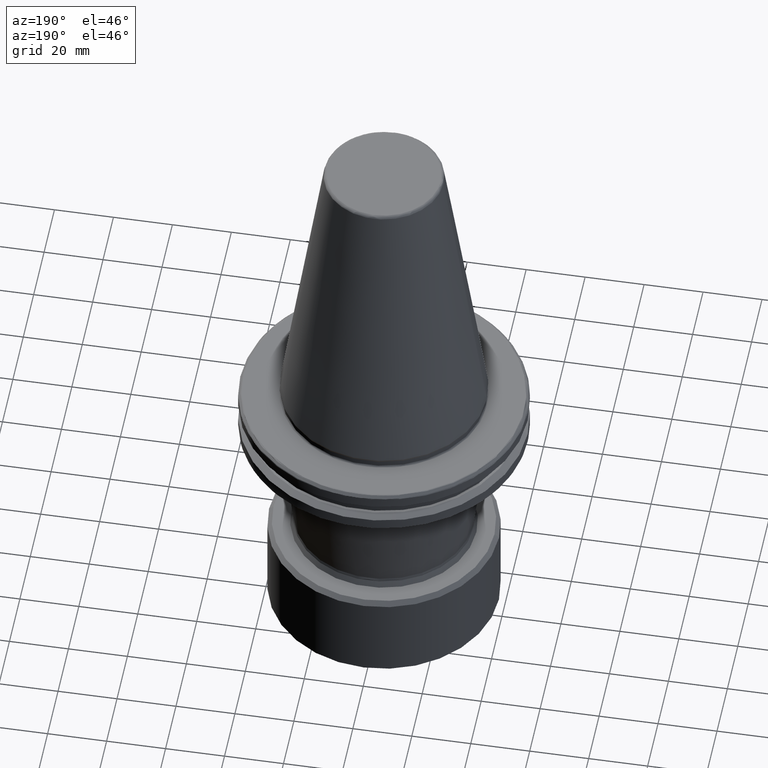
[diagram: clean part render]
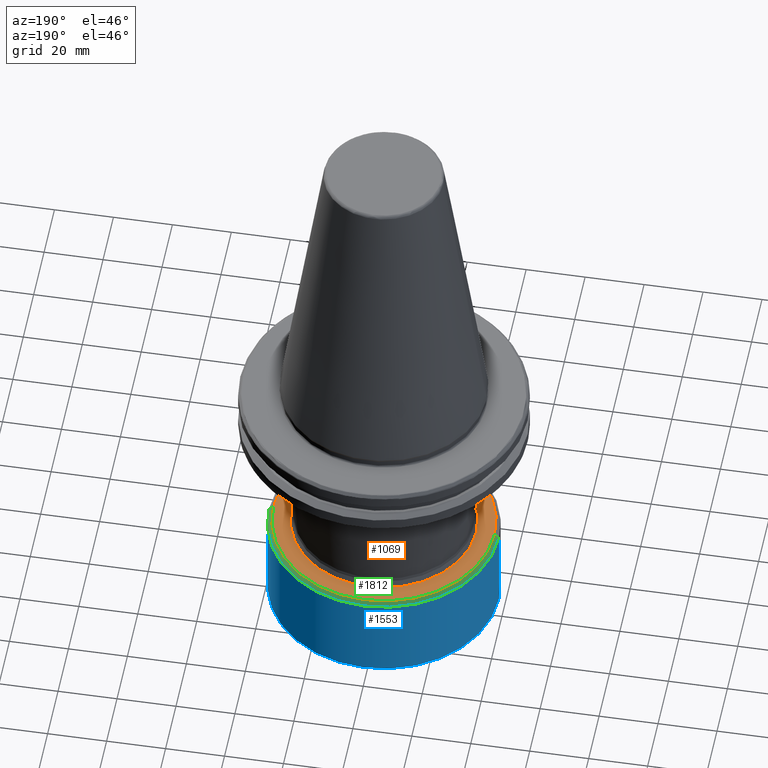
[diagram: same view with three faces highlighted in distinct colors, each labeled with its STEP entity id]
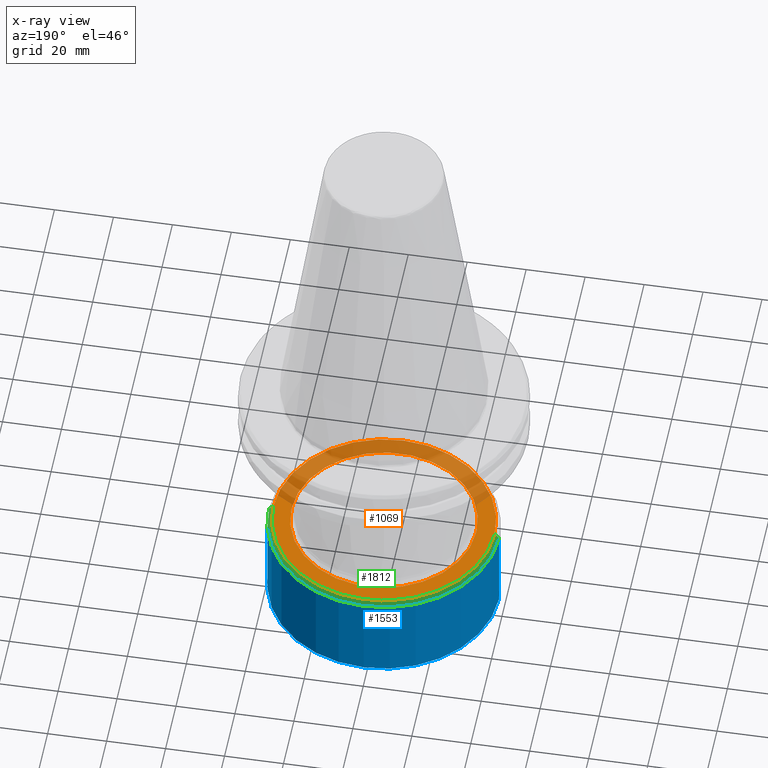
[diagram: x-ray of the same camera — body ghosted, the three highlighted faces saturated]
A machine part, auxiliary view with three faces highlighted in distinct colors.
The next image is the same camera in x-ray (body ghosted, the three faces saturated) — at least one of them is partly hidden behind the body in this view.
Their STEP definitions:

[orange] entity #1069 — the highlighted planar face has unit normal (0, 0, -1).
#90 = DIRECTION ( 'NONE',  ( -1.000000000000000000, 0.0000000000000000000, 0.0000000000000000000 ) ) ;
#160 = VERTEX_POINT ( 'NONE', #2072 ) ;
#170 = VERTEX_POINT ( 'NONE', #1917 ) ;
#172 = EDGE_CURVE ( 'NONE', #160, #170, #716, .T. ) ;
#220 = DIRECTION ( 'NONE',  ( -1.000000000000000000, 0.0000000000000000000, 0.0000000000000000000 ) ) ;
#270 = EDGE_LOOP ( 'NONE', ( #817, #1467 ) ) ;
#550 = DIRECTION ( 'NONE',  ( 0.0000000000000000000, 0.0000000000000000000, -1.000000000000000000 ) ) ;
#716 = CIRCLE ( 'NONE', #1989, 37.50000000000000000 ) ;
#750 = PLANE ( 'NONE',  #2490 ) ;
#792 = CIRCLE ( 'NONE', #1306, 31.38086162042798900 ) ;
#817 = ORIENTED_EDGE ( 'NONE', *, *, #172, .F. ) ;
#913 = EDGE_CURVE ( 'NONE', #1863, #979, #2829, .T. ) ;
#979 = VERTEX_POINT ( 'NONE', #2238 ) ;
#1069 = ADVANCED_FACE ( 'NONE', ( #2264, #3064 ), #750, .F. ) ;
#1071 = EDGE_CURVE ( 'NONE', #170, #160, #2130, .T. ) ;
#1105 = DIRECTION ( 'NONE',  ( -1.000000000000000000, 0.0000000000000000000, 0.0000000000000000000 ) ) ;
#1306 = AXIS2_PLACEMENT_3D ( 'NONE', #1326, #1320, #1105 ) ;
#1320 = DIRECTION ( 'NONE',  ( -0.0000000000000000000, -0.0000000000000000000, 1.000000000000000000 ) ) ;
#1323 = CARTESIAN_POINT ( 'NONE',  ( 0.0000000000000000000, 0.0000000000000000000, -64.59999999999999400 ) ) ;
#1326 = CARTESIAN_POINT ( 'NONE',  ( 0.0000000000000000000, 0.0000000000000000000, -64.59999999999999400 ) ) ;
#1467 = ORIENTED_EDGE ( 'NONE', *, *, #1071, .F. ) ;
#1593 = DIRECTION ( 'NONE',  ( 0.0000000000000000000, 0.0000000000000000000, -1.000000000000000000 ) ) ;
#1727 = CARTESIAN_POINT ( 'NONE',  ( -31.38086162042798900, 0.0000000000000000000, -64.59999999999999400 ) ) ;
#1739 = DIRECTION ( 'NONE',  ( -0.0000000000000000000, -0.0000000000000000000, 1.000000000000000000 ) ) ;
#1828 = AXIS2_PLACEMENT_3D ( 'NONE', #3079, #1739, #220 ) ;
#1862 = DIRECTION ( 'NONE',  ( -1.000000000000000000, 0.0000000000000000000, 0.0000000000000000000 ) ) ;
#1863 = VERTEX_POINT ( 'NONE', #1727 ) ;
#1876 = DIRECTION ( 'NONE',  ( 0.0000000000000000000, 0.0000000000000000000, -1.000000000000000000 ) ) ;
#1880 = CARTESIAN_POINT ( 'NONE',  ( 0.0000000000000000000, 0.0000000000000000000, -64.59999999999999400 ) ) ;
#1917 = CARTESIAN_POINT ( 'NONE',  ( 37.50000000000000000, 4.684274006738626500E-015, -64.59999999999999400 ) ) ;
#1983 = EDGE_CURVE ( 'NONE', #979, #1863, #792, .T. ) ;
#1989 = AXIS2_PLACEMENT_3D ( 'NONE', #1880, #1876, #1862 ) ;
#2072 = CARTESIAN_POINT ( 'NONE',  ( -37.50000000000000000, 0.0000000000000000000, -64.59999999999999400 ) ) ;
#2130 = CIRCLE ( 'NONE', #2641, 37.50000000000000000 ) ;
#2238 = CARTESIAN_POINT ( 'NONE',  ( 31.38086162042798900, 3.843047173794316500E-015, -64.59999999999999400 ) ) ;
#2264 = FACE_BOUND ( 'NONE', #2405, .T. ) ;
#2304 = DIRECTION ( 'NONE',  ( -1.000000000000000000, 0.0000000000000000000, -0.0000000000000000000 ) ) ;
#2308 = ORIENTED_EDGE ( 'NONE', *, *, #1983, .F. ) ;
#2405 = EDGE_LOOP ( 'NONE', ( #2899, #2308 ) ) ;
#2490 = AXIS2_PLACEMENT_3D ( 'NONE', #1323, #550, #2304 ) ;
#2641 = AXIS2_PLACEMENT_3D ( 'NONE', #2950, #1593, #90 ) ;
#2829 = CIRCLE ( 'NONE', #1828, 31.38086162042798900 ) ;
#2899 = ORIENTED_EDGE ( 'NONE', *, *, #913, .F. ) ;
#2950 = CARTESIAN_POINT ( 'NONE',  ( 0.0000000000000000000, 0.0000000000000000000, -64.59999999999999400 ) ) ;
#3064 = FACE_OUTER_BOUND ( 'NONE', #270, .T. ) ;
#3079 = CARTESIAN_POINT ( 'NONE',  ( 0.0000000000000000000, 0.0000000000000000000, -64.59999999999999400 ) ) ;

[blue] entity #1553 — the highlighted cylindrical surface (partial cylindrical patch) has radius 39 mm, axis along (0, 0, 1).
#197 = VERTEX_POINT ( 'NONE', #1850 ) ;
#205 = CARTESIAN_POINT ( 'NONE',  ( -39.00000000000000000, 4.776122516674677900E-015, -95.66987298107787300 ) ) ;
#338 = CARTESIAN_POINT ( 'NONE',  ( 0.0000000000000000000, 0.0000000000000000000, -95.66987298107787300 ) ) ;
#348 = CARTESIAN_POINT ( 'NONE',  ( 0.0000000000000000000, 0.0000000000000000000, 181.9423428149682400 ) ) ;
#398 = AXIS2_PLACEMENT_3D ( 'NONE', #348, #594, #1874 ) ;
#521 = LINE ( 'NONE', #2679, #1484 ) ;
#581 = DIRECTION ( 'NONE',  ( 1.000000000000000000, 0.0000000000000000000, 0.0000000000000000000 ) ) ;
#594 = DIRECTION ( 'NONE',  ( 0.0000000000000000000, 0.0000000000000000000, 1.000000000000000000 ) ) ;
#904 = VERTEX_POINT ( 'NONE', #961 ) ;
#961 = CARTESIAN_POINT ( 'NONE',  ( 39.00000000000000000, 0.0000000000000000000, -95.66987298107787300 ) ) ;
#1032 = CARTESIAN_POINT ( 'NONE',  ( 39.00000000000000000, 0.0000000000000000000, -66.09999999999999400 ) ) ;
#1095 = EDGE_CURVE ( 'NONE', #904, #2152, #2080, .T. ) ;
#1242 = CIRCLE ( 'NONE', #2884, 39.00000000000000000 ) ;
#1258 = DIRECTION ( 'NONE',  ( 0.0000000000000000000, 0.0000000000000000000, 1.000000000000000000 ) ) ;
#1266 = ORIENTED_EDGE ( 'NONE', *, *, #1095, .T. ) ;
#1484 = VECTOR ( 'NONE', #1258, 1000.000000000000000 ) ;
#1553 = ADVANCED_FACE ( 'NONE', ( #2751 ), #2985, .T. ) ;
#1580 = DIRECTION ( 'NONE',  ( -0.0000000000000000000, -0.0000000000000000000, 1.000000000000000000 ) ) ;
#1633 = ORIENTED_EDGE ( 'NONE', *, *, #2952, .F. ) ;
#1840 = VECTOR ( 'NONE', #2894, 1000.000000000000000 ) ;
#1850 = CARTESIAN_POINT ( 'NONE',  ( -39.00000000000000000, 4.776122516674677900E-015, -66.09999999999999400 ) ) ;
#1871 = LINE ( 'NONE', #3085, #1840 ) ;
#1874 = DIRECTION ( 'NONE',  ( 1.000000000000000000, 0.0000000000000000000, 0.0000000000000000000 ) ) ;
#1897 = DIRECTION ( 'NONE',  ( -1.000000000000000000, 0.0000000000000000000, 0.0000000000000000000 ) ) ;
#1940 = EDGE_CURVE ( 'NONE', #2164, #197, #1242, .T. ) ;
#2080 = CIRCLE ( 'NONE', #2367, 39.00000000000000000 ) ;
#2103 = DIRECTION ( 'NONE',  ( 0.0000000000000000000, 0.0000000000000000000, 1.000000000000000000 ) ) ;
#2152 = VERTEX_POINT ( 'NONE', #205 ) ;
#2164 = VERTEX_POINT ( 'NONE', #1032 ) ;
#2367 = AXIS2_PLACEMENT_3D ( 'NONE', #338, #2103, #581 ) ;
#2369 = ORIENTED_EDGE ( 'NONE', *, *, #1940, .F. ) ;
#2374 = EDGE_LOOP ( 'NONE', ( #1266, #2410, #2369, #1633 ) ) ;
#2383 = CARTESIAN_POINT ( 'NONE',  ( 0.0000000000000000000, 0.0000000000000000000, -66.09999999999999400 ) ) ;
#2410 = ORIENTED_EDGE ( 'NONE', *, *, #2987, .T. ) ;
#2679 = CARTESIAN_POINT ( 'NONE',  ( 39.00000000000000000, 0.0000000000000000000, 181.9423428149682400 ) ) ;
#2751 = FACE_OUTER_BOUND ( 'NONE', #2374, .T. ) ;
#2884 = AXIS2_PLACEMENT_3D ( 'NONE', #2383, #1580, #1897 ) ;
#2894 = DIRECTION ( 'NONE',  ( 0.0000000000000000000, 0.0000000000000000000, 1.000000000000000000 ) ) ;
#2952 = EDGE_CURVE ( 'NONE', #904, #2164, #521, .T. ) ;
#2985 = CYLINDRICAL_SURFACE ( 'NONE', #398, 39.00000000000000000 ) ;
#2987 = EDGE_CURVE ( 'NONE', #2152, #197, #1871, .T. ) ;
#3085 = CARTESIAN_POINT ( 'NONE',  ( -39.00000000000000000, 4.776122516674677900E-015, 181.9423428149682400 ) ) ;

[green] entity #1812 — the highlighted conical surface has half-angle 45 deg.
#54 = ORIENTED_EDGE ( 'NONE', *, *, #1940, .T. ) ;
#122 = ORIENTED_EDGE ( 'NONE', *, *, #1133, .T. ) ;
#160 = VERTEX_POINT ( 'NONE', #2072 ) ;
#170 = VERTEX_POINT ( 'NONE', #1917 ) ;
#172 = EDGE_CURVE ( 'NONE', #160, #170, #716, .T. ) ;
#197 = VERTEX_POINT ( 'NONE', #1850 ) ;
#514 = VECTOR ( 'NONE', #2771, 1000.000000000000000 ) ;
#716 = CIRCLE ( 'NONE', #1989, 37.50000000000000000 ) ;
#953 = AXIS2_PLACEMENT_3D ( 'NONE', #1397, #1394, #1166 ) ;
#1032 = CARTESIAN_POINT ( 'NONE',  ( 39.00000000000000000, 0.0000000000000000000, -66.09999999999999400 ) ) ;
#1094 = LINE ( 'NONE', #2557, #514 ) ;
#1133 = EDGE_CURVE ( 'NONE', #170, #2164, #1958, .T. ) ;
#1166 = DIRECTION ( 'NONE',  ( -1.000000000000000000, 0.0000000000000000000, 0.0000000000000000000 ) ) ;
#1202 = FACE_OUTER_BOUND ( 'NONE', #3074, .T. ) ;
#1242 = CIRCLE ( 'NONE', #2884, 39.00000000000000000 ) ;
#1276 = CONICAL_SURFACE ( 'NONE', #953, 39.00000000000000000, 0.7853981633974482800 ) ;
#1356 = DIRECTION ( 'NONE',  ( 0.7071067811865474600, 8.659560562354931600E-017, -0.7071067811865475700 ) ) ;
#1394 = DIRECTION ( 'NONE',  ( 0.0000000000000000000, 0.0000000000000000000, -1.000000000000000000 ) ) ;
#1397 = CARTESIAN_POINT ( 'NONE',  ( 0.0000000000000000000, 0.0000000000000000000, -66.09999999999999400 ) ) ;
#1544 = ORIENTED_EDGE ( 'NONE', *, *, #172, .T. ) ;
#1580 = DIRECTION ( 'NONE',  ( -0.0000000000000000000, -0.0000000000000000000, 1.000000000000000000 ) ) ;
#1812 = ADVANCED_FACE ( 'NONE', ( #1202 ), #1276, .T. ) ;
#1850 = CARTESIAN_POINT ( 'NONE',  ( -39.00000000000000000, 4.776122516674677900E-015, -66.09999999999999400 ) ) ;
#1851 = VECTOR ( 'NONE', #1356, 1000.000000000000000 ) ;
#1862 = DIRECTION ( 'NONE',  ( -1.000000000000000000, 0.0000000000000000000, 0.0000000000000000000 ) ) ;
#1876 = DIRECTION ( 'NONE',  ( 0.0000000000000000000, 0.0000000000000000000, -1.000000000000000000 ) ) ;
#1880 = CARTESIAN_POINT ( 'NONE',  ( 0.0000000000000000000, 0.0000000000000000000, -64.59999999999999400 ) ) ;
#1897 = DIRECTION ( 'NONE',  ( -1.000000000000000000, 0.0000000000000000000, 0.0000000000000000000 ) ) ;
#1917 = CARTESIAN_POINT ( 'NONE',  ( 37.50000000000000000, 4.684274006738626500E-015, -64.59999999999999400 ) ) ;
#1940 = EDGE_CURVE ( 'NONE', #2164, #197, #1242, .T. ) ;
#1958 = LINE ( 'NONE', #2333, #1851 ) ;
#1989 = AXIS2_PLACEMENT_3D ( 'NONE', #1880, #1876, #1862 ) ;
#2072 = CARTESIAN_POINT ( 'NONE',  ( -37.50000000000000000, 0.0000000000000000000, -64.59999999999999400 ) ) ;
#2164 = VERTEX_POINT ( 'NONE', #1032 ) ;
#2333 = CARTESIAN_POINT ( 'NONE',  ( 39.00000000000000000, 4.776122516674677900E-015, -66.09999999999999400 ) ) ;
#2379 = ORIENTED_EDGE ( 'NONE', *, *, #3046, .F. ) ;
#2383 = CARTESIAN_POINT ( 'NONE',  ( 0.0000000000000000000, 0.0000000000000000000, -66.09999999999999400 ) ) ;
#2557 = CARTESIAN_POINT ( 'NONE',  ( -39.00000000000000000, 0.0000000000000000000, -66.09999999999999400 ) ) ;
#2771 = DIRECTION ( 'NONE',  ( -0.7071067811865474600, 0.0000000000000000000, -0.7071067811865475700 ) ) ;
#2884 = AXIS2_PLACEMENT_3D ( 'NONE', #2383, #1580, #1897 ) ;
#3046 = EDGE_CURVE ( 'NONE', #160, #197, #1094, .T. ) ;
#3074 = EDGE_LOOP ( 'NONE', ( #1544, #122, #54, #2379 ) ) ;